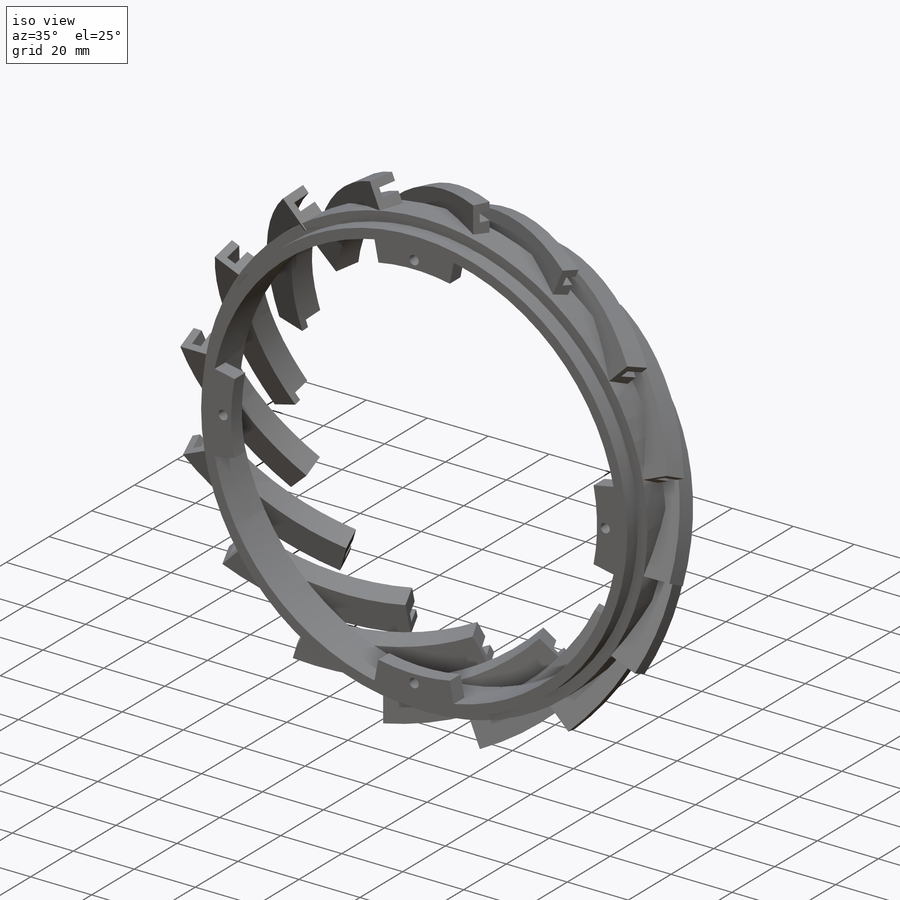
[diagram: iso view]
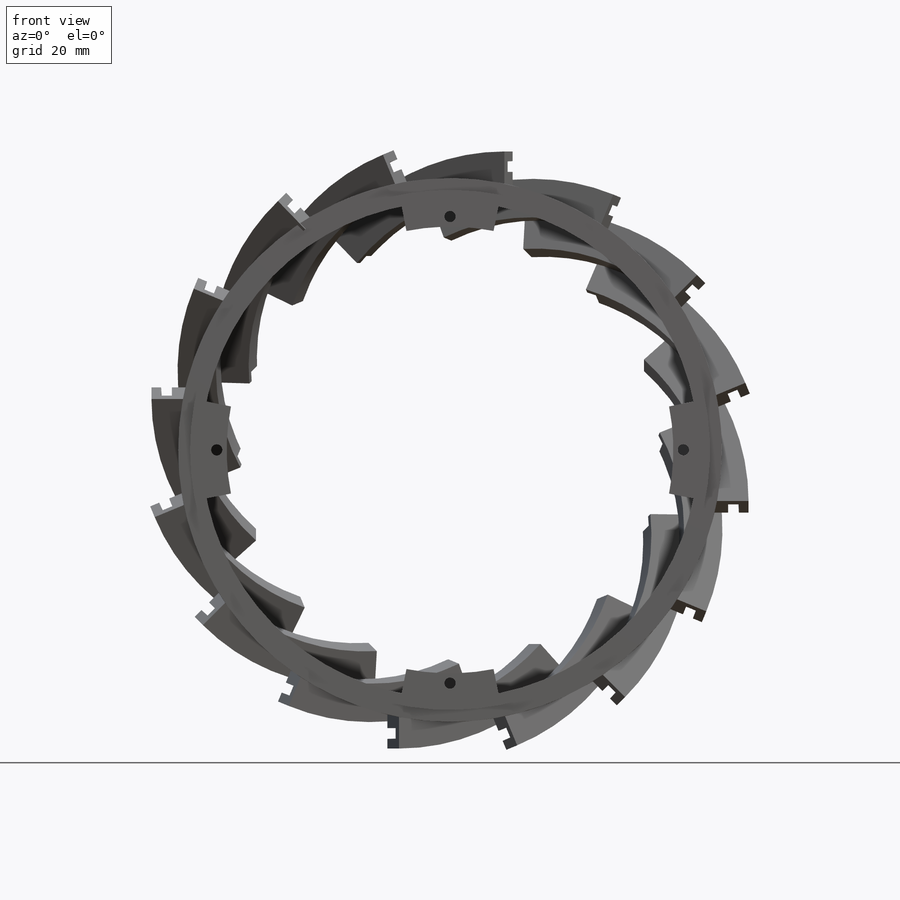
[diagram: front view]
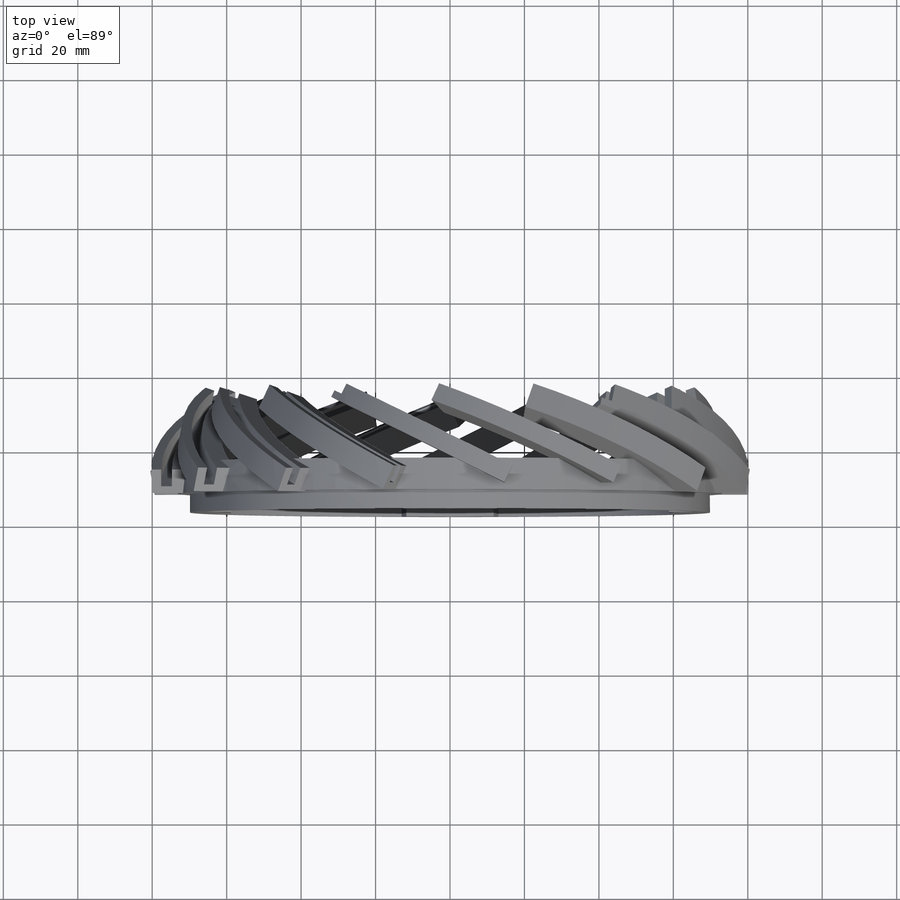
[diagram: top view]
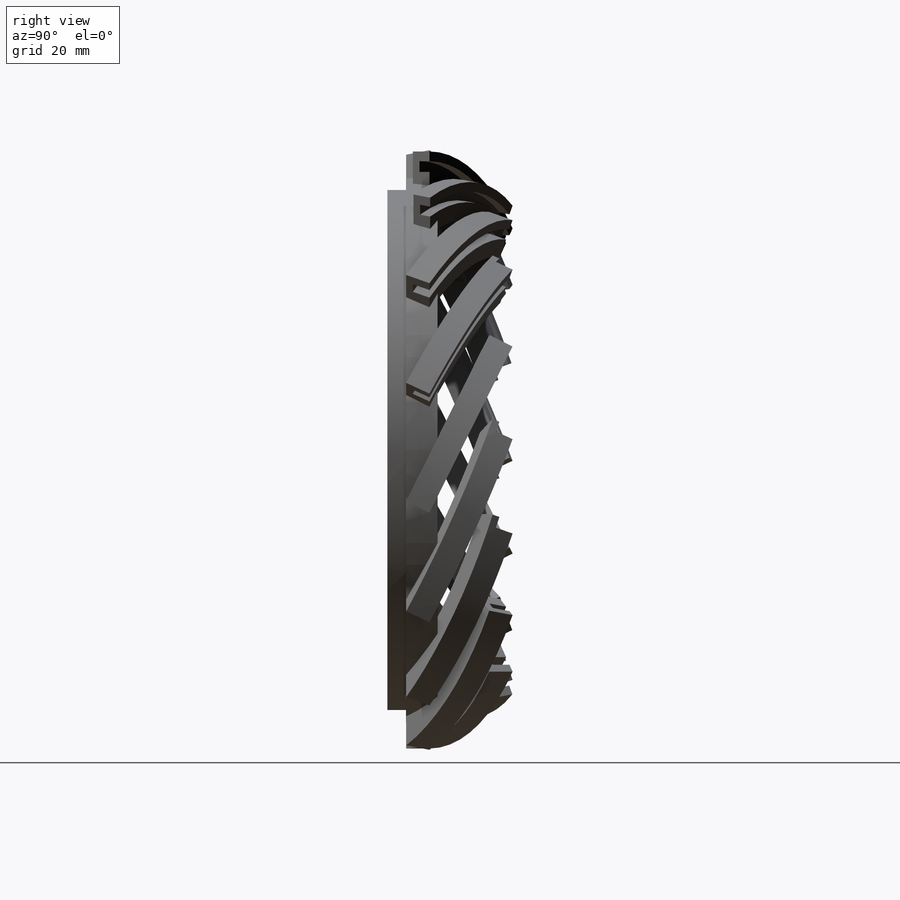
[diagram: right view]
SOLIDWORKS PART (.sldprt)
format: sldprt  version: not decoded by parser v0  size: 1,999,872 bytes
history: native  units: mm
features: sketch x56, extrude x37, cut_extrude x19, material x1 (+15 scaffold rows collapsed)
feature tree (128):
  scaffold x15  (default folders/planes/origin — collapsed)
  material  "Material <not specified>"
  sketch  "Sketch1"  dims[D1=23.75mm]
  extrude  "Extrude1"  Depth=5mm
  sketch  "Sketch2"  dims[D1=6.35mm]
  extrude  "Extrude2"  Depth=5mm
  sketch  "Sketch3"  dims[D1=1.5875mm]
  cut_extrude  "Cut-Extrude1"  [1 undecoded]
  sketch  "Sketch4"  dims[D1=~1.149337mm]
  cut_extrude  "Cut-Extrude2"  [1 undecoded]
  sketch  "Sketch5"  dims[c1.D1=~3.236068mm c1.D2=~2.913119mm c1.D3=3.175mm c1.D4=4.825mm c1.D5=~3.236068mm c1.D6=~292.499954deg c2.D6=~2.913119mm c2.D7=4.825mm c2.D8=3.175mm c2.D5=4.825mm c3.D6=3.175mm c3.D7=~3.236068mm c3.D8=~2.913119mm c4.D6=3.175mm c4.D9=4.825mm c4.D10=~3.236068mm c4.D11=~2.913119mm c4.D12=3.175mm c4.D13=4.825mm c4.D14=~3.236068mm c4.D15=~2.913119mm c4.D16=3.175mm c4.D17=4.825mm c4.D18=~3.236068mm c4.D19=~2.913119mm c4.D20=3.175mm c4.D21=4.825mm c4.D22=~3.236068mm c4.D23=~2.913119mm c4.D24=3.175mm c4.D25=4.825mm c4.D26=3.175mm c4.D27=~3.236068mm c4.D28=~2.913119mm c4.D29=4.825mm c4.D30=~2.913119mm c4.D31=~3.236068mm c4.D32=3.175mm c4.D33=3.175mm c4.D34=4.825mm c5.D33=~3.236068mm c5.D34=~1.526432mm c5.D35=4.7625mm c6.D34=~2.913119mm c6.D35=3.175mm c6.D36=4.825mm c6.D37=4.825mm c6.D38=~3.236068mm c6.D39=~2.913119mm c6.D40=3.175mm c6.D41=4.825mm c6.D42=~3.236068mm c6.D43=~2.913119mm c6.D44=3.175mm c6.D45=4.825mm c6.D46=~3.236068mm c6.D47=~2.913119mm c6.D48=3.175mm c6.D49=4.825mm c6.D50=~3.236068mm c6.D51=~2.913119mm c6.D52=3.175mm c6.D53=4.825mm c6.D54=~3.236068mm c6.D55=~2.913119mm c6.D56=3.175mm c6.D57=4.825mm c6.D58=~3.236068mm c6.D59=~2.913119mm c6.D60=3.175mm c6.D61=4.825mm c6.D62=~3.236068mm c6.D63=~2.913119mm c6.D64=3.175mm]
  extrude  "Extrude4"  Depth=1.073313mm
  sketch  "Sketch6"  dims[D1=~2.146625mm D2=~1.073313mm D3=~1.073313mm]
  cut_extrude  "Extrude5"  [1 undecoded]
  sketch  "Sketch9"  dims[D1=~2.146625mm D2=~1.073313mm D3=~1.073313mm]
  cut_extrude  "Extrude7"  [1 undecoded]
  sketch  "Sketch10"  dims[D1=~2.146625mm D2=~1.073313mm]
  cut_extrude  "Extrude8"  [1 undecoded]
  sketch  "Sketch11"  dims[D1=~2.146625mm D2=~1.073313mm]
  cut_extrude  "Extrude9"  [1 undecoded]
  sketch  "Sketch12"  dims[D1=~2.146625mm D2=~1.073313mm]
  cut_extrude  "Extrude10"  [1 undecoded]
  sketch  "Sketch13"  dims[D1=~2.146625mm D2=~1.073313mm]
  cut_extrude  "Extrude11"  [1 undecoded]
  sketch  "Sketch14"  dims[D1=~2.146625mm D2=~1.073313mm]
  cut_extrude  "Extrude12"  [1 undecoded]
  sketch  "Sketch15"  dims[D1=~2.146625mm D2=~1.073313mm]
  cut_extrude  "Extrude13"  [1 undecoded]
  sketch  "Sketch16"  dims[D1=~2.146625mm D2=~1.073313mm]
  cut_extrude  "Extrude14"  [1 undecoded]
  sketch  "Sketch17"  dims[D1=~2.146625mm D2=~1.073313mm]
  cut_extrude  "Extrude15"  [1 undecoded]
  sketch  "Sketch18"  dims[D1=~2.146625mm D2=~1.073313mm]
  cut_extrude  "Extrude16"  [1 undecoded]
  sketch  "Sketch19"  dims[D1=~2.146625mm D2=~1.073313mm]
  cut_extrude  "Extrude17"  [1 undecoded]
  sketch  "Sketch20"  dims[D1=~2.146625mm D2=~1.073313mm]
  cut_extrude  "Extrude18"  [1 undecoded]
  sketch  "Sketch21"  dims[D1=~2.146625mm D2=~1.073313mm]
  cut_extrude  "Extrude19"  [1 undecoded]
  sketch  "Sketch22"  dims[D1=~2.146625mm D2=~1.073313mm]
  cut_extrude  "Extrude20"  [1 undecoded]
  sketch  "Sketch23"  dims[D1=~2.146625mm D2=~1.073313mm]
  cut_extrude  "Extrude21"  [1 undecoded]
  sketch  "Sketch24"  dims[c1.D3=65.0875mm c1.D4=~71.903046mm c1.D1=14.2875mm c1.D2=12.7mm c2.D3=~11.099729mm c2.D2=12.7mm]
  extrude  "Extrude22"  Depth=5mm
  sketch  "Sketch25"  dims[c1.D3=65.0875mm c1.D4=67.9875mm c1.D5=72.9875mm c1.D1=14.2875mm c1.D2=12.7mm c2.D3=2.9mm]
  extrude  "Extrude24"  Depth=5mm
  sketch  "Sketch26"  dims[D3=65.0875mm D4=67.9875mm D5=72.9875mm D1=14.2875mm D2=12.7mm]
  extrude  "Extrude25"  Depth=5mm
  sketch  "Sketch27"  dims[c1.D3=65.0875mm c1.D4=67.9875mm c1.D5=72.9875mm c1.D1=14.2875mm c1.D2=~22.768658mm c2.D1=14.2875mm c2.D2=~6.742586mm c3.D1=14.2875mm c3.D2=12.7mm]
  extrude  "Extrude26"  Depth=5mm
  sketch  "Sketch28"  dims[D3=65.0875mm D4=72.9875mm D1=14.2875mm D2=12.7mm]
  extrude  "Extrude27"  Depth=5mm
  sketch  "Sketch29"  dims[c1.D3=65.0875mm c1.D4=72.9875mm c1.D1=14.2875mm c1.D2=12.7mm c2.D3=~16.082093mm]
  extrude  "Extrude28"  Depth=5mm
  sketch  "Sketch30"  dims[D3=65.0875mm D4=72.9875mm D1=14.2875mm D2=12.7mm]
  extrude  "Extrude29"  Depth=5mm
  sketch  "Sketch31"  dims[D3=65.0875mm D4=72.9875mm D1=14.2875mm D2=12.7mm]
  extrude  "Extrude30"  Depth=5mm
  sketch  "Sketch32"  dims[D3=65.0875mm D4=72.9875mm D1=14.2875mm D2=12.7mm]
  extrude  "Extrude31"  Depth=5mm
  sketch  "Sketch33"  dims[D3=65.0875mm D4=72.9875mm D1=14.2875mm D2=12.7mm]
  extrude  "Extrude32"  Depth=5mm
  sketch  "Sketch34"  dims[D3=65.0875mm D4=72.9875mm D1=14.2875mm D2=12.7mm]
  extrude  "Extrude33"  Depth=5mm
  sketch  "Sketch35"  dims[D3=65.0875mm D4=72.9875mm D1=14.2875mm D2=12.7mm]
  extrude  "Extrude34"  Depth=5mm
  sketch  "Sketch36"  dims[D3=65.0875mm D4=70.9875mm D1=14.2875mm D2=12.7mm]
  extrude  "Extrude35"  Depth=5mm
  sketch  "Sketch37"  dims[D3=65.0875mm D4=~72.958557mm D1=14.2875mm D2=12.7mm]
  extrude  "Extrude36"  Depth=5mm
  sketch  "Sketch39"  dims[D3=65.0875mm D4=70.9875mm D1=14.2875mm D2=12.7mm]
  extrude  "Extrude37"  Depth=5mm
  sketch  "Sketch40"  dims[D3=65.0875mm D4=72.9875mm D1=14.2875mm D2=12.7mm]
  extrude  "Extrude38"  Depth=5mm
  sketch  "Sketch41"
  extrude  "Extrude39"  Depth=2mm
  sketch  "Sketch42"
  extrude  "Extrude40"  Depth=2mm
  sketch  "Sketch44"
  extrude  "Extrude41"  Depth=2mm
  sketch  "Sketch45"
  extrude  "Extrude42"  Depth=2mm
  sketch  "Sketch46"
  extrude  "Extrude43"  Depth=2mm
  sketch  "Sketch47"
  extrude  "Extrude44"  Depth=2mm
  sketch  "Sketch48"
  extrude  "Extrude45"  Depth=2mm
  sketch  "Sketch49"
  extrude  "Extrude46"  Depth=2mm
  sketch  "Sketch50"
  extrude  "Extrude47"  Depth=2mm
  sketch  "Sketch51"
  extrude  "Extrude48"  Depth=2mm
  sketch  "Sketch52"
  extrude  "Extrude49"  Depth=2mm
  sketch  "Sketch53"
  extrude  "Extrude50"  Depth=2mm
  sketch  "Sketch54"
  extrude  "Extrude51"  Depth=2mm
  sketch  "Sketch55"
  extrude  "Extrude52"  Depth=2mm
  sketch  "Sketch57"
  extrude  "Extrude54"  Depth=2mm
  sketch  "Sketch59"
  extrude  "Extrude56"  Depth=2mm
  sketch  "Sketch58"
  extrude  "Extrude57"  Depth=7.5mm
  sketch  "Sketch60"  dims[D1=~1.768704mm]
  extrude  "Extrude58"  Depth=5mm
  sketch  "Sketch61"
  cut_extrude  "Extrude59"  [1 undecoded]
decode coverage: 75 of 112 modeling features carry decoded parameters
note: ~ marks probable driven/reference dimensions
note: 19 parameter values undecoded
summary: no parameter record found for 19 features
note: suppression state not decoded; provenance and decode notes live in map.json
